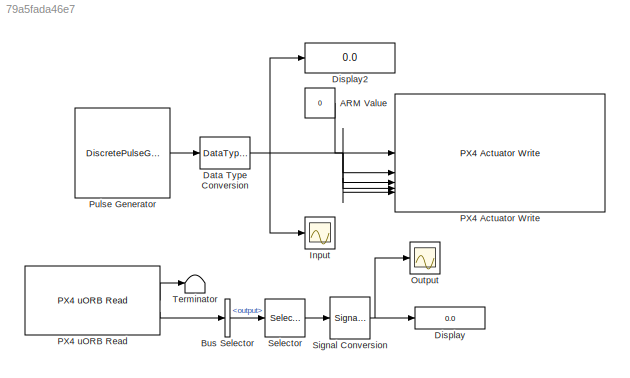
MODEL slx_79a5fada46e7
KIND model
CONFIG AbsTol = auto
CONFIG EnableMultiTasking = on
CONFIG FixedStep = auto
CONFIG MaxStep = auto
CONFIG MinStep = auto
CONFIG RelTol = 1e-3
CONFIG SampleTimeConstraint = Unconstrained
CONFIG SolverName = FixedStepAuto
CONFIG StartTime = 0.0
CONFIG StopTime = inf
BLOCK [Constant] ARM Value
  OutDataTypeStr = boolean
  SampleTime = 0.001
  Value = 0
BLOCK [BusSelector] Bus Selector
  OutputSignals = output
BLOCK [DataTypeConversion] Data Type Conversion
  OutDataTypeStr = single
  RndMeth = Floor
  SaturateOnIntegerOverflow = off
BLOCK [Display] Display
  Decimation = 1
BLOCK [Display] Display2
  Decimation = 1
BLOCK [Scope] Input
  ActiveDisplayYMaximum = 1
  ActiveDisplayYMinimum = -1
  DataLogging = on
  DataLoggingSaveFormat = Structure With Time
  DataLoggingVariableName = Input
  Floating = off
  GraphicalSettings = {"Style":{"BackgroundColor":[0.12941176470588237,0.12941176470588237,0.12941176470588237],"AxesColor":[0.07058823529411765,0.07058823529411765,0.07058823529411765],"LabelsColor":[0.8509803921568627,0.8509803921568627,0.8509803921568627],"PreserveColors":false,"Visible":[true,true,true,true,true,true,true],"LineStyle":["-","-","-","-","-","-","-"],"LineWidth":[1.5,1.5,1.5,1.5,1.5,1.5,1.5],"BarWidth...<+2539ch>
  MultipleDisplayCache = [{"MaxYLimMag":1,"MaxYLimReal":1,"MinYLimMag":0,"MinYLimReal":-1,"PlotAsMagnitudePhase":false,"ShowGrid":true,"ShowLegend":false,"Title":"%<SignalLabel>","YLabel":""}]
  NumInputPorts = 1
  ScopeFrameLocation = window
  WasSavedAsWebScope = on
  WindowPosition = [488.000000,222.000000,560.000000,420.000000,]
BLOCK [Scope] Output
  ActiveDisplayYMaximum = 1100
  ActiveDisplayYMinimum = 900
  DataLogging = on
  DataLoggingSaveFormat = Structure With Time
  DataLoggingVariableName = output
  Floating = off
  GraphicalSettings = {"Style":{"BackgroundColor":[0.12941176470588237,0.12941176470588237,0.12941176470588237],"AxesColor":[0.07058823529411765,0.07058823529411765,0.07058823529411765],"LabelsColor":[0.8509803921568627,0.8509803921568627,0.8509803921568627],"PreserveColors":false,"Visible":[true,true,true,true],"LineStyle":["-","-","-","-"],"LineWidth":[1.5,1.5,1.5,1.5],"BarWidth":[0.9,0.9,0.9,0.9],"LineColor":["auto"...<+2337ch>
  MultipleDisplayCache = [{"MaxYLimMag":1100,"MaxYLimReal":1100,"MinYLimMag":900,"MinYLimReal":900,"PlotAsMagnitudePhase":false,"ShowGrid":true,"ShowLegend":false,"Title":"%<SignalLabel>","YLabel":""}]
  NumInputPorts = 1
  ScopeFrameLocation = window
  WasSavedAsWebScope = on
  WindowPosition = [770.000000,228.000000,560.000000,420.000000,]
BLOCK [Reference] PX4 Actuator Write  REF=px4Peripheralslib/PX4 Actuator Write
  SourceBlock = px4Peripheralslib/PX4 Actuator Write
  SourceType = px4.internal.block.PX4Actuators
BLOCK [Reference] PX4 uORB Read  REF=px4uORBlib/PX4 uORB Read
  SourceBlock = px4uORBlib/PX4 uORB Read
  SourceType = PX4 uORB Read
BLOCK [DiscretePulseGenerator] Pulse Generator
  Amplitude = 0.5
  Period = 3000
  PulseWidth = 1000
  SampleTime = 0.001
BLOCK [Selector] Selector
  IndexOptions = Index vector (dialog)
  Indices = [1 2 3 4]
  InputPortWidth = 16
  OutputSizes = 1
BLOCK [SignalConversion] Signal Conversion
  OverrideOpt = off
BLOCK [Terminator] Terminator
LINE ARM Value:1 -> PX4 Actuator Write:1
LINE Bus Selector:1 -> Selector:1
NET Data Type Conversion:1 -> Display2:1, Input:1, PX4 Actuator Write:2, PX4 Actuator Write:3, PX4 Actuator Write:4, PX4 Actuator Write:5
LINE PX4 uORB Read:1 -> Terminator:1
LINE PX4 uORB Read:2 -> Bus Selector:1
LINE Pulse Generator:1 -> Data Type Conversion:1
LINE Selector:1 -> Signal Conversion:1
NET Signal Conversion:1 -> Display:1, Output:1
note: NET lines group one-source signal fan-out (src -> all destinations, sorted); 1:1 wires keep LINE
